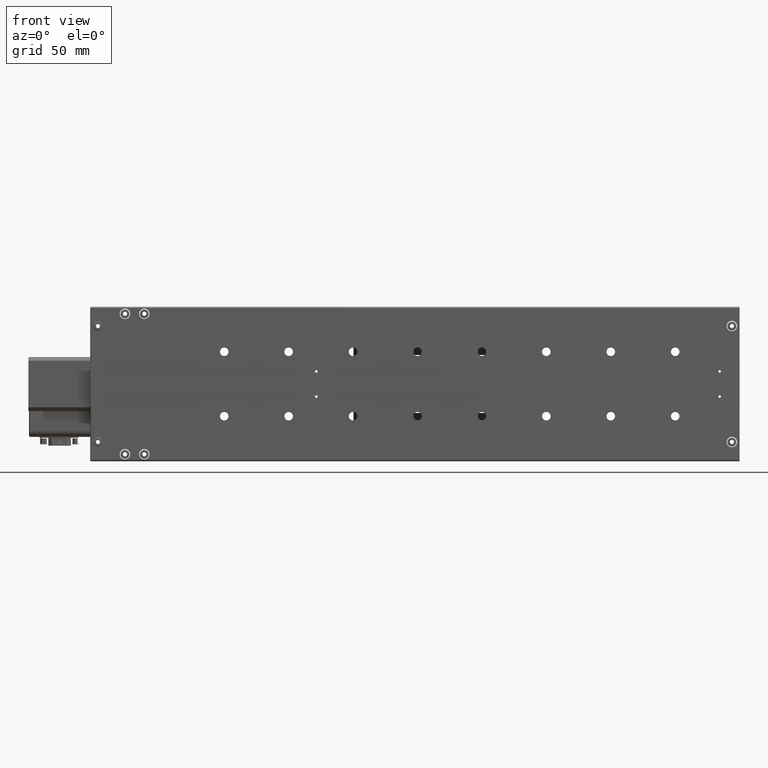
[diagram: clean part render]
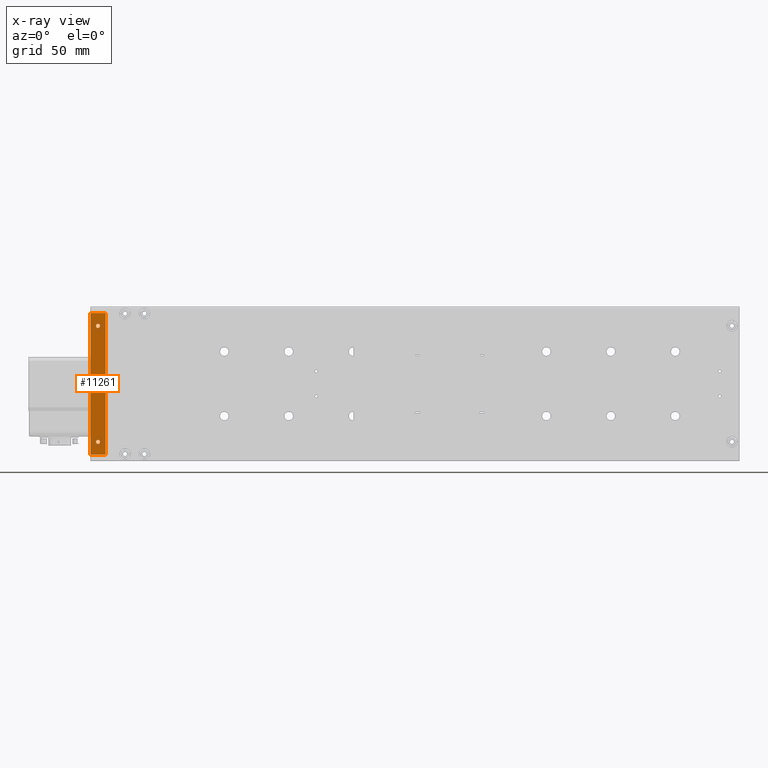
[diagram: x-ray — body ghosted, one internal face saturated and labeled with its STEP entity id]
A machine part, front view, then the same camera in x-ray: the body is ghosted and one INTERNAL B-rep face — a face not visible from any outside direction — is saturated and labeled: STEP entity #11261.
In plain terms, the highlighted planar face has unit normal (-0, 1, -0).
Its self-contained STEP definition (entity closure, byte-faithful):
#1901 = FACE_BOUND ( 'NONE', #11819, .T. ) ;
#1913 = VECTOR ( 'NONE', #25384, 1000.000000000000000 ) ;
#2222 = CARTESIAN_POINT ( 'NONE',  ( -373.2680563949335200, 11.99999999999998800, 212.9914224104918200 ) ) ;
#3038 = ORIENTED_EDGE ( 'NONE', *, *, #15180, .F. ) ;
#3111 = EDGE_CURVE ( 'NONE', #3427, #27974, #18371, .T. ) ;
#3427 = VERTEX_POINT ( 'NONE', #16896 ) ;
#3777 = CARTESIAN_POINT ( 'NONE',  ( -371.6180563949335500, 11.99999999999998800, 212.9914224104918500 ) ) ;
#4400 = EDGE_CURVE ( 'NONE', #13590, #23891, #26741, .T. ) ;
#4959 = PLANE ( 'NONE',  #37132 ) ;
#6291 = ORIENTED_EDGE ( 'NONE', *, *, #4400, .F. ) ;
#6728 = DIRECTION ( 'NONE',  ( 1.000000000000000000, 1.274654131356476300E-030, 1.040834085586084100E-014 ) ) ;
#6877 = ORIENTED_EDGE ( 'NONE', *, *, #21751, .T. ) ;
#8271 = DIRECTION ( 'NONE',  ( 1.751623080406021300E-046, -1.000000000000000000, 1.224646799147353200E-016 ) ) ;
#9843 = DIRECTION ( 'NONE',  ( -1.611493233973539600E-044, 1.000000000000000000, -1.224646799147353200E-016 ) ) ;
#11261 = ADVANCED_FACE ( 'NONE', ( #1901, #17218, #16166 ), #4959, .F. ) ;
#11819 = EDGE_LOOP ( 'NONE', ( #26024, #16517 ) ) ;
#12242 = AXIS2_PLACEMENT_3D ( 'NONE', #20099, #30337, #43870 ) ;
#13490 = LINE ( 'NONE', #22099, #14548 ) ;
#13590 = VERTEX_POINT ( 'NONE', #15032 ) ;
#13765 = ORIENTED_EDGE ( 'NONE', *, *, #36576, .F. ) ;
#14548 = VECTOR ( 'NONE', #35941, 1000.000000000000000 ) ;
#14900 = CARTESIAN_POINT ( 'NONE',  ( -377.6180563949345700, 12.00000000000000000, 312.9914224104917900 ) ) ;
#15032 = CARTESIAN_POINT ( 'NONE',  ( -369.9680563949335700, 11.99999999999998800, 212.9914224104918800 ) ) ;
#15180 = EDGE_CURVE ( 'NONE', #31541, #35523, #22223, .T. ) ;
#15308 = CARTESIAN_POINT ( 'NONE',  ( -365.6180563949334300, 11.99999999999998600, 202.9914224104919100 ) ) ;
#16113 = ORIENTED_EDGE ( 'NONE', *, *, #33663, .T. ) ;
#16166 = FACE_OUTER_BOUND ( 'NONE', #36679, .T. ) ;
#16517 = ORIENTED_EDGE ( 'NONE', *, *, #34429, .F. ) ;
#16896 = CARTESIAN_POINT ( 'NONE',  ( -373.2680563949344900, 11.99999999999999800, 302.9914224104917900 ) ) ;
#17041 = VERTEX_POINT ( 'NONE', #15308 ) ;
#17218 = FACE_BOUND ( 'NONE', #17806, .T. ) ;
#17367 = CARTESIAN_POINT ( 'NONE',  ( -371.6180563949345100, 11.99999999999999800, 302.9914224104917900 ) ) ;
#17755 = AXIS2_PLACEMENT_3D ( 'NONE', #3777, #33822, #33521 ) ;
#17806 = EDGE_LOOP ( 'NONE', ( #6291, #32145 ) ) ;
#18371 = CIRCLE ( 'NONE', #23435, 1.649999999999984800 ) ;
#19883 = DIRECTION ( 'NONE',  ( 1.000000000000000000, 0.0000000000000000000, 1.682156097916919500E-014 ) ) ;
#20070 = CARTESIAN_POINT ( 'NONE',  ( -369.9680563949345400, 11.99999999999999800, 302.9914224104917900 ) ) ;
#20099 = CARTESIAN_POINT ( 'NONE',  ( -371.6180563949345100, 11.99999999999999800, 302.9914224104917900 ) ) ;
#21360 = VERTEX_POINT ( 'NONE', #33288 ) ;
#21380 = DIRECTION ( 'NONE',  ( 1.000000000000000000, 1.274654131356476300E-030, 1.040834085586084100E-014 ) ) ;
#21751 = EDGE_CURVE ( 'NONE', #17041, #35523, #39014, .T. ) ;
#22099 = CARTESIAN_POINT ( 'NONE',  ( -377.6180563949345700, 12.00000000000000000, 312.9914224104917900 ) ) ;
#22223 = LINE ( 'NONE', #14900, #39260 ) ;
#23435 = AXIS2_PLACEMENT_3D ( 'NONE', #17367, #8271, #38472 ) ;
#23891 = VERTEX_POINT ( 'NONE', #2222 ) ;
#25384 = DIRECTION ( 'NONE',  ( -1.040834085586084100E-014, 1.224646799147353200E-016, 1.000000000000000000 ) ) ;
#25964 = CARTESIAN_POINT ( 'NONE',  ( -377.6180563949334300, 11.99999999999998600, 202.9914224104917900 ) ) ;
#26024 = ORIENTED_EDGE ( 'NONE', *, *, #3111, .F. ) ;
#26424 = DIRECTION ( 'NONE',  ( 1.751623080406021300E-046, -1.000000000000000000, 1.224646799147353200E-016 ) ) ;
#26741 = CIRCLE ( 'NONE', #38552, 1.649999999999984800 ) ;
#27330 = CIRCLE ( 'NONE', #17755, 1.649999999999984800 ) ;
#27974 = VERTEX_POINT ( 'NONE', #20070 ) ;
#30337 = DIRECTION ( 'NONE',  ( 1.751623080406021300E-046, -1.000000000000000000, 1.224646799147353200E-016 ) ) ;
#31314 = EDGE_CURVE ( 'NONE', #23891, #13590, #27330, .T. ) ;
#31418 = VECTOR ( 'NONE', #43061, 1000.000000000000000 ) ;
#31541 = VERTEX_POINT ( 'NONE', #37648 ) ;
#32145 = ORIENTED_EDGE ( 'NONE', *, *, #31314, .F. ) ;
#32337 = CARTESIAN_POINT ( 'NONE',  ( -365.6180563949346300, 12.00000000000000000, 312.9914224104919100 ) ) ;
#32999 = LINE ( 'NONE', #25964, #31418 ) ;
#33288 = CARTESIAN_POINT ( 'NONE',  ( -377.6180563949334300, 11.99999999999998600, 202.9914224104917900 ) ) ;
#33521 = DIRECTION ( 'NONE',  ( 1.000000000000000000, 0.0000000000000000000, 1.682156097916919500E-014 ) ) ;
#33663 = EDGE_CURVE ( 'NONE', #21360, #17041, #32999, .T. ) ;
#33822 = DIRECTION ( 'NONE',  ( 1.751623080406021300E-046, -1.000000000000000000, 1.224646799147353200E-016 ) ) ;
#34429 = EDGE_CURVE ( 'NONE', #27974, #3427, #41407, .T. ) ;
#35523 = VERTEX_POINT ( 'NONE', #32337 ) ;
#35941 = DIRECTION ( 'NONE',  ( -1.040834085586084100E-014, 1.224646799147353200E-016, 1.000000000000000000 ) ) ;
#35959 = CARTESIAN_POINT ( 'NONE',  ( -365.6180563949346300, 12.00000000000000000, 312.9914224104919100 ) ) ;
#36576 = EDGE_CURVE ( 'NONE', #21360, #31541, #13490, .T. ) ;
#36679 = EDGE_LOOP ( 'NONE', ( #6877, #3038, #13765, #16113 ) ) ;
#37132 = AXIS2_PLACEMENT_3D ( 'NONE', #40169, #9843, #6728 ) ;
#37648 = CARTESIAN_POINT ( 'NONE',  ( -377.6180563949345700, 12.00000000000000000, 312.9914224104917900 ) ) ;
#38472 = DIRECTION ( 'NONE',  ( -1.000000000000000000, 0.0000000000000000000, 0.0000000000000000000 ) ) ;
#38552 = AXIS2_PLACEMENT_3D ( 'NONE', #40245, #26424, #19883 ) ;
#39014 = LINE ( 'NONE', #35959, #1913 ) ;
#39260 = VECTOR ( 'NONE', #21380, 1000.000000000000000 ) ;
#40169 = CARTESIAN_POINT ( 'NONE',  ( -377.6180563949345700, 12.00000000000000000, 312.9914224104917900 ) ) ;
#40245 = CARTESIAN_POINT ( 'NONE',  ( -371.6180563949335500, 11.99999999999998800, 212.9914224104918500 ) ) ;
#41407 = CIRCLE ( 'NONE', #12242, 1.649999999999984800 ) ;
#43061 = DIRECTION ( 'NONE',  ( 1.000000000000000000, 1.274654131356476300E-030, 1.040834085586084100E-014 ) ) ;
#43870 = DIRECTION ( 'NONE',  ( -1.000000000000000000, 0.0000000000000000000, 0.0000000000000000000 ) ) ;